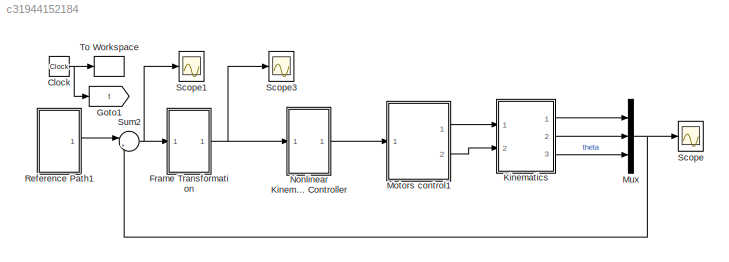
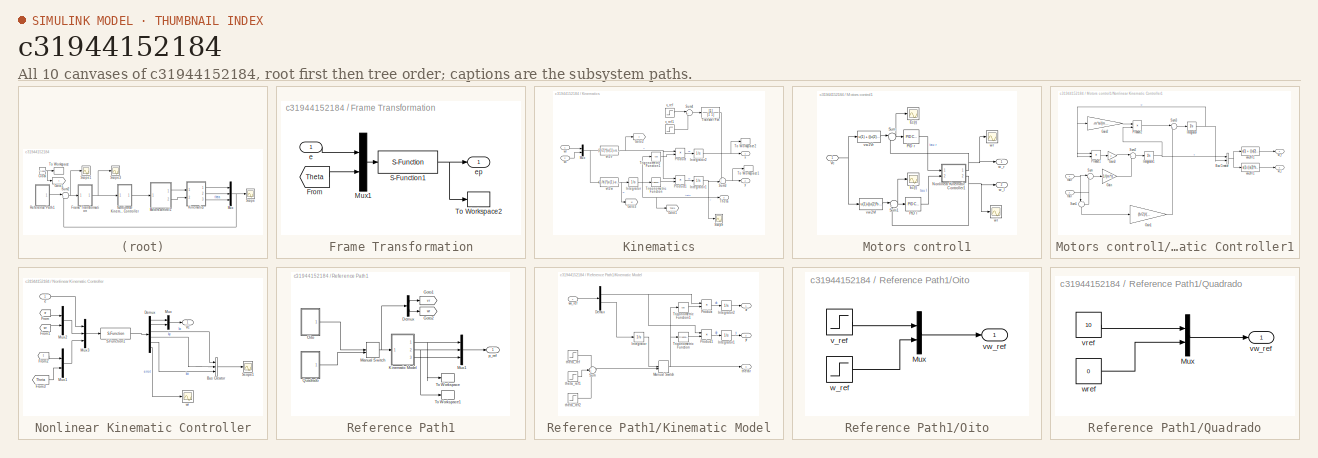
[diagram: thumbnail index - all 10 canvases of the model, root first then tree order]
MODEL slx_c31944152184
KIND model
BLOCK [Clock] Clock
  Decimation = 1
BLOCK [SubSystem] Frame Transformation
  Ports = [1, 1]
  RequestExecContextInheritance = off
BLOCK [From] Frame Transformation/From
  GotoTag = Theta
  TagVisibility = global
BLOCK [Mux] Frame Transformation/Mux1
  DisplayOption = bar
  Inputs = 2
  Ports = [2, 1]
BLOCK [S-Function] Frame Transformation/S-Function1
  EnableBusSupport = off
  FunctionName = sfunc_Ep
  Parameters = Ts
  Ports = [1, 1]
BLOCK [ToWorkspace] Frame Transformation/To Workspace2
  MaxDataPoints = inf
  Ports = [1]
  SampleTime = Ts
  VariableName = ep
BLOCK [Inport] Frame Transformation/e
  IconDisplay = Port number
BLOCK [Outport] Frame Transformation/ep
  IconDisplay = Port number
BLOCK [Goto] Goto1
  GotoTag = t
  TagVisibility = global
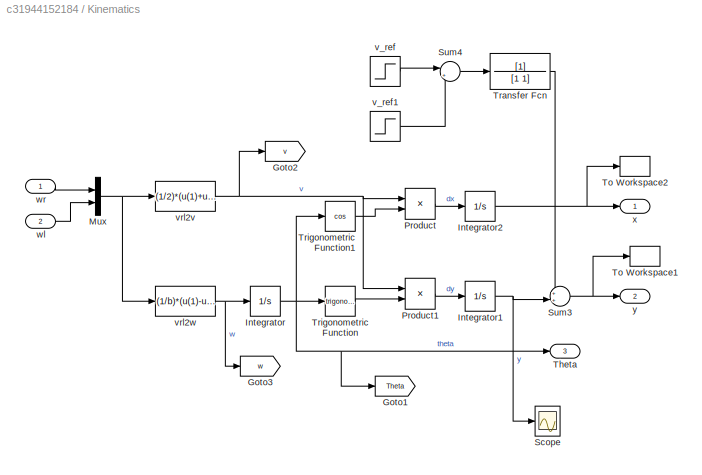
BLOCK [SubSystem] Kinematics
  Ports = [2, 3]
  RequestExecContextInheritance = off
BLOCK [Goto] Kinematics/Goto1
  GotoTag = Theta
  TagVisibility = global
BLOCK [Goto] Kinematics/Goto2
  GotoTag = v
  TagVisibility = global
BLOCK [Goto] Kinematics/Goto3
  GotoTag = w
  TagVisibility = global
BLOCK [Integrator] Kinematics/Integrator
  InitialCondition = thetao
  Ports = [1, 1]
BLOCK [Integrator] Kinematics/Integrator1
  InitialCondition = yo
  Ports = [1, 1]
BLOCK [Integrator] Kinematics/Integrator2
  InitialCondition = xo
  Ports = [1, 1]
BLOCK [Mux] Kinematics/Mux
  DisplayOption = bar
  Inputs = 2
  Ports = [2, 1]
BLOCK [Product] Kinematics/Product
  InputSameDT = off
  OutDataTypeStr = Inherit: Inherit via internal rule
  Ports = [2, 1]
  RndMeth = Floor
  SaturateOnIntegerOverflow = off
BLOCK [Product] Kinematics/Product1
  InputSameDT = off
  OutDataTypeStr = Inherit: Inherit via internal rule
  Ports = [2, 1]
  RndMeth = Floor
  SaturateOnIntegerOverflow = off
BLOCK [Scope] Kinematics/Scope
  DataFormat = StructureWithTime
  Floating = off
  LimitDataPoints = off
  NumInputPorts = 1
  Ports = [1]
  SampleTime = 0
  SaveName = ScopeData1
  ShowLegends = off
  TimeRange = 10
  ZoomMode = xonly
BLOCK [Sum] Kinematics/Sum3
  IconShape = round
  InputSameDT = off
  Inputs = ++|
  OutDataTypeStr = Inherit: Inherit via internal rule
  Ports = [2, 1]
  SaturateOnIntegerOverflow = off
BLOCK [Sum] Kinematics/Sum4
  IconShape = round
  InputSameDT = off
  Inputs = |+-
  OutDataTypeStr = Inherit: Inherit via internal rule
  Ports = [2, 1]
  SaturateOnIntegerOverflow = off
BLOCK [Outport] Kinematics/Theta
  IconDisplay = Port number
  Port = 3
BLOCK [ToWorkspace] Kinematics/To Workspace1
  MaxDataPoints = inf
  Ports = [1]
  SampleTime = Ts
  VariableName = y_real
BLOCK [ToWorkspace] Kinematics/To Workspace2
  MaxDataPoints = inf
  Ports = [1]
  SampleTime = Ts
  VariableName = x_real
BLOCK [TransferFcn] Kinematics/Transfer Fcn
  Denominator = [1 1]
BLOCK [Trigonometry] Kinematics/Trigonometric Function
  Ports = [1, 1]
BLOCK [Trigonometry] Kinematics/Trigonometric Function1
  Operator = cos
  Ports = [1, 1]
BLOCK [Step] Kinematics/v_ref
  After = -0.1
  SampleTime = 0
  Time = 25
BLOCK [Step] Kinematics/v_ref1
  After = -0.1
  SampleTime = 0
  Time = 26
BLOCK [Fcn] Kinematics/vrl2v
  Expr = (1/2)*(u(1)+u(2))
BLOCK [Fcn] Kinematics/vrl2w
  Expr = (1/b)*(u(1)-u(2))
BLOCK [Inport] Kinematics/wl
  IconDisplay = Port number
  Port = 2
BLOCK [Inport] Kinematics/wr
  IconDisplay = Port number
BLOCK [Outport] Kinematics/x
  IconDisplay = Port number
BLOCK [Outport] Kinematics/y
  IconDisplay = Port number
  Port = 2
BLOCK [SubSystem] Motors control1
  Ports = [1, 2]
  RequestExecContextInheritance = off
BLOCK [Scope] Motors control1/Ec(l)
  DataFormat = StructureWithTime
  Floating = off
  NumInputPorts = 1
  Ports = [1]
  SampleTime = 0
  SaveName = ScopeData7
  ShowLegends = off
  ZoomMode = xonly
BLOCK [Scope] Motors control1/Ec(r)
  DataFormat = StructureWithTime
  Floating = off
  NumInputPorts = 1
  Ports = [1]
  SampleTime = 0
  SaveName = ScopeData6
  ShowLegends = off
  ZoomMode = xonly
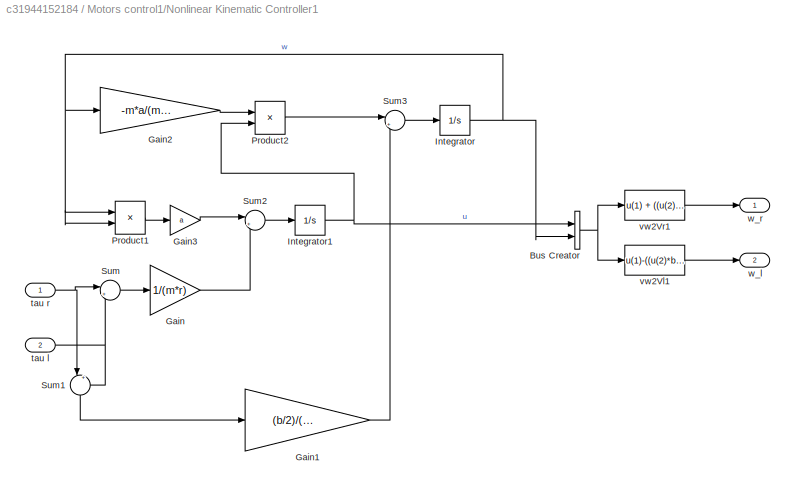
BLOCK [SubSystem] Motors control1/Nonlinear Kinematic Controller1
  Ports = [2, 2]
  RequestExecContextInheritance = off
BLOCK [BusCreator] Motors control1/Nonlinear Kinematic Controller1/Bus Creator
  DisplayOption = bar
  Inputs = 2
  Ports = [2, 1]
BLOCK [Gain] Motors control1/Nonlinear Kinematic Controller1/Gain
  Gain = 1/(m*r)
  OutDataTypeStr = Inherit: Inherit via internal rule
  ParamDataTypeStr = Inherit: Inherit via internal rule
  SaturateOnIntegerOverflow = off
BLOCK [Gain] Motors control1/Nonlinear Kinematic Controller1/Gain1
  Gain = (b/2)/(r*(m*a*a+Ic))
  OutDataTypeStr = Inherit: Inherit via internal rule
  ParamDataTypeStr = Inherit: Inherit via internal rule
  SaturateOnIntegerOverflow = off
BLOCK [Gain] Motors control1/Nonlinear Kinematic Controller1/Gain2
  Gain = -m*a/(m*a*a+Ic)
  OutDataTypeStr = Inherit: Inherit via internal rule
  ParamDataTypeStr = Inherit: Inherit via internal rule
  SaturateOnIntegerOverflow = off
BLOCK [Gain] Motors control1/Nonlinear Kinematic Controller1/Gain3
  Gain = a
  OutDataTypeStr = Inherit: Inherit via internal rule
  ParamDataTypeStr = Inherit: Inherit via internal rule
  SaturateOnIntegerOverflow = off
BLOCK [Integrator] Motors control1/Nonlinear Kinematic Controller1/Integrator
  Ports = [1, 1]
BLOCK [Integrator] Motors control1/Nonlinear Kinematic Controller1/Integrator1
  Ports = [1, 1]
BLOCK [Product] Motors control1/Nonlinear Kinematic Controller1/Product1
  InputSameDT = off
  OutDataTypeStr = Inherit: Inherit via internal rule
  Ports = [2, 1]
  RndMeth = Floor
  SaturateOnIntegerOverflow = off
BLOCK [Product] Motors control1/Nonlinear Kinematic Controller1/Product2
  InputSameDT = off
  OutDataTypeStr = Inherit: Inherit via internal rule
  Ports = [2, 1]
  RndMeth = Floor
  SaturateOnIntegerOverflow = off
BLOCK [Sum] Motors control1/Nonlinear Kinematic Controller1/Sum
  IconShape = round
  InputSameDT = off
  Inputs = |++
  OutDataTypeStr = Inherit: Inherit via internal rule
  Ports = [2, 1]
  SaturateOnIntegerOverflow = off
BLOCK [Sum] Motors control1/Nonlinear Kinematic Controller1/Sum1
  IconShape = round
  InputSameDT = off
  Inputs = |+-
  OutDataTypeStr = Inherit: Inherit via internal rule
  Ports = [2, 1]
  SaturateOnIntegerOverflow = off
BLOCK [Sum] Motors control1/Nonlinear Kinematic Controller1/Sum2
  IconShape = round
  InputSameDT = off
  Inputs = |++
  OutDataTypeStr = Inherit: Inherit via internal rule
  Ports = [2, 1]
  SaturateOnIntegerOverflow = off
BLOCK [Sum] Motors control1/Nonlinear Kinematic Controller1/Sum3
  IconShape = round
  InputSameDT = off
  Inputs = |++
  OutDataTypeStr = Inherit: Inherit via internal rule
  Ports = [2, 1]
  SaturateOnIntegerOverflow = off
BLOCK [Inport] Motors control1/Nonlinear Kinematic Controller1/tau l
  IconDisplay = Port number
  Port = 2
BLOCK [Inport] Motors control1/Nonlinear Kinematic Controller1/tau r
  IconDisplay = Port number
BLOCK [Fcn] Motors control1/Nonlinear Kinematic Controller1/vw2Vl1
  Expr = u(1)-((u(2)*b)/2)
BLOCK [Fcn] Motors control1/Nonlinear Kinematic Controller1/vw2Vr1
  Expr = u(1) + ((u(2)*b)/2)
BLOCK [Outport] Motors control1/Nonlinear Kinematic Controller1/w_l
  IconDisplay = Port number
  Port = 2
BLOCK [Outport] Motors control1/Nonlinear Kinematic Controller1/w_r
  IconDisplay = Port number
BLOCK [Reference] Motors control1/PID l  REF=simulink/Continuous/PID Controller
  AntiWindupMode = none
  Controller = PID
  D = Kd
  DOutDataTypeStr = Inherit: Inherit via internal rule
  DOutMax = []
  DOutMin = []
  DParamDataTypeStr = Inherit: Inherit via internal rule
  DParamMax = []
  DParamMin = []
  ExternalReset = none
  FilterContinuousStateAttributes = ''
  FilterMethod = Forward Euler
  FilterOutDataTypeStr = Inherit: Inherit via internal rule
  FilterOutMax = []
  FilterOutMin = []
  FilterRTWStateStorageClass = Auto
  FilterStateMustResolveToSignalObject = off
  Form = Parallel
  I = Ki
  IOutDataTypeStr = Inherit: Inherit via internal rule
  IOutMax = []
  IOutMin = []
  IParamDataTypeStr = Inherit: Inherit via internal rule
  IParamMax = []
  IParamMin = []
  IgnoreLimit = off
  InitialConditionForFilter = 0
  InitialConditionForIntegrator = 0
  InitialConditionSource = internal
  IntegratorContinuousStateAttributes = ''
  IntegratorMethod = Forward Euler
  IntegratorOutDataTypeStr = Inherit: Inherit via internal rule
  IntegratorOutMax = []
  IntegratorOutMin = []
  IntegratorRTWStateStorageClass = Auto
  IntegratorStateMustResolveToSignalObject = off
  Kb = 1
  KbOutDataTypeStr = Inherit: Inherit via internal rule
  KbOutMax = []
  KbOutMin = []
  KbParamDataTypeStr = Inherit: Inherit via internal rule
  KbParamMax = []
  KbParamMin = []
  Kt = 1
  KtOutDataTypeStr = Inherit: Inherit via internal rule
  KtOutMax = []
  KtOutMin = []
  KtParamDataTypeStr = Inherit: Inherit via internal rule
  KtParamMax = []
  KtParamMin = []
  LimitOutput = off
  LinearizeAsGain = on
  LockScale = off
  LowerSaturationLimit = -inf
  N = 100
  NOutDataTypeStr = Inherit: Inherit via internal rule
  NOutMax = []
  NOutMin = []
  NParamDataTypeStr = Inherit: Inherit via internal rule
  NParamMax = []
  NParamMin = []
  P = Kp
  POutDataTypeStr = Inherit: Inherit via internal rule
  POutMax = []
  POutMin = []
  PParamDataTypeStr = Inherit: Inherit via internal rule
  PParamMax = []
  PParamMin = []
  Ports = [1, 1]
  RndMeth = Floor
  SampleTime = 1
  SaturateOnIntegerOverflow = off
  SaturationOutDataTypeStr = Inherit: Same as input
  SaturationOutMax = []
  SaturationOutMin = []
  SourceBlock = simulink/Continuous/PID Controller
  SourceType = PID 1dof
  SumAccumDataTypeStr = Inherit: Inherit via internal rule
  SumDAccumDataTypeStr = Inherit: Inherit via internal rule
  SumDOutDataTypeStr = Inherit: Inherit via internal rule
  SumDOutMax = []
  SumDOutMin = []
  SumI1AccumDataTypeStr = Inherit: Inherit via internal rule
  SumI1OutDataTypeStr = Inherit: Inherit via internal rule
  SumI1OutMax = []
  SumI1OutMin = []
  SumI2AccumDataTypeStr = Inherit: Inherit via internal rule
  SumI2OutDataTypeStr = Inherit: Inherit via internal rule
  SumI2OutMax = []
  SumI2OutMin = []
  SumI3AccumDataTypeStr = Inherit: Inherit via internal rule
  SumI3OutDataTypeStr = Inherit: Inherit via internal rule
  SumI3OutMax = []
  SumI3OutMin = []
  SumOutDataTypeStr = Inherit: Inherit via internal rule
  SumOutMax = []
  SumOutMin = []
  TimeDomain = Continuous-time
  TrackingMode = off
  UpperSaturationLimit = inf
  ZeroCross = on
BLOCK [Reference] Motors control1/PID r  REF=simulink/Continuous/PID Controller
  AntiWindupMode = none
  Controller = PID
  D = Kd
  DOutDataTypeStr = Inherit: Inherit via internal rule
  DOutMax = []
  DOutMin = []
  DParamDataTypeStr = Inherit: Inherit via internal rule
  DParamMax = []
  DParamMin = []
  ExternalReset = none
  FilterContinuousStateAttributes = ''
  FilterMethod = Forward Euler
  FilterOutDataTypeStr = Inherit: Inherit via internal rule
  FilterOutMax = []
  FilterOutMin = []
  FilterRTWStateStorageClass = Auto
  FilterStateMustResolveToSignalObject = off
  Form = Parallel
  I = Ki
  IOutDataTypeStr = Inherit: Inherit via internal rule
  IOutMax = []
  IOutMin = []
  IParamDataTypeStr = Inherit: Inherit via internal rule
  IParamMax = []
  IParamMin = []
  IgnoreLimit = off
  InitialConditionForFilter = 0
  InitialConditionForIntegrator = 0
  InitialConditionSource = internal
  IntegratorContinuousStateAttributes = ''
  IntegratorMethod = Forward Euler
  IntegratorOutDataTypeStr = Inherit: Inherit via internal rule
  IntegratorOutMax = []
  IntegratorOutMin = []
  IntegratorRTWStateStorageClass = Auto
  IntegratorStateMustResolveToSignalObject = off
  Kb = 1
  KbOutDataTypeStr = Inherit: Inherit via internal rule
  KbOutMax = []
  KbOutMin = []
  KbParamDataTypeStr = Inherit: Inherit via internal rule
  KbParamMax = []
  KbParamMin = []
  Kt = 1
  KtOutDataTypeStr = Inherit: Inherit via internal rule
  KtOutMax = []
  KtOutMin = []
  KtParamDataTypeStr = Inherit: Inherit via internal rule
  KtParamMax = []
  KtParamMin = []
  LimitOutput = off
  LinearizeAsGain = on
  LockScale = off
  LowerSaturationLimit = -inf
  N = 100
  NOutDataTypeStr = Inherit: Inherit via internal rule
  NOutMax = []
  NOutMin = []
  NParamDataTypeStr = Inherit: Inherit via internal rule
  NParamMax = []
  NParamMin = []
  P = Kp
  POutDataTypeStr = Inherit: Inherit via internal rule
  POutMax = []
  POutMin = []
  PParamDataTypeStr = Inherit: Inherit via internal rule
  PParamMax = []
  PParamMin = []
  Ports = [1, 1]
  RndMeth = Floor
  SampleTime = 1
  SaturateOnIntegerOverflow = off
  SaturationOutDataTypeStr = Inherit: Same as input
  SaturationOutMax = []
  SaturationOutMin = []
  SourceBlock = simulink/Continuous/PID Controller
  SourceType = PID 1dof
  SumAccumDataTypeStr = Inherit: Inherit via internal rule
  SumDAccumDataTypeStr = Inherit: Inherit via internal rule
  SumDOutDataTypeStr = Inherit: Inherit via internal rule
  SumDOutMax = []
  SumDOutMin = []
  SumI1AccumDataTypeStr = Inherit: Inherit via internal rule
  SumI1OutDataTypeStr = Inherit: Inherit via internal rule
  SumI1OutMax = []
  SumI1OutMin = []
  SumI2AccumDataTypeStr = Inherit: Inherit via internal rule
  SumI2OutDataTypeStr = Inherit: Inherit via internal rule
  SumI2OutMax = []
  SumI2OutMin = []
  SumI3AccumDataTypeStr = Inherit: Inherit via internal rule
  SumI3OutDataTypeStr = Inherit: Inherit via internal rule
  SumI3OutMax = []
  SumI3OutMin = []
  SumOutDataTypeStr = Inherit: Inherit via internal rule
  SumOutMax = []
  SumOutMin = []
  TimeDomain = Continuous-time
  TrackingMode = off
  UpperSaturationLimit = inf
  ZeroCross = on
BLOCK [Sum] Motors control1/Sum
  IconShape = round
  InputSameDT = off
  Inputs = |+-
  OutDataTypeStr = Inherit: Inherit via internal rule
  Ports = [2, 1]
  SaturateOnIntegerOverflow = off
BLOCK [Sum] Motors control1/Sum1
  IconShape = round
  InputSameDT = off
  Inputs = |+-
  OutDataTypeStr = Inherit: Inherit via internal rule
  Ports = [2, 1]
  SaturateOnIntegerOverflow = off
BLOCK [Inport] Motors control1/Vc
  IconDisplay = Port number
BLOCK [Fcn] Motors control1/vw2Vl
  Expr = u(1)-((u(2)*b)/2)
BLOCK [Fcn] Motors control1/vw2Vr
  Expr = u(1) + ((u(2)*b)/2)
BLOCK [Outport] Motors control1/w_l
  IconDisplay = Port number
  Port = 2
BLOCK [Outport] Motors control1/w_r
  IconDisplay = Port number
BLOCK [Scope] Motors control1/wl
  DataFormat = StructureWithTime
  Floating = off
  NumInputPorts = 1
  Ports = [1]
  SampleTime = 0
  SaveName = ScopeData5
  ShowLegends = off
  ZoomMode = xonly
BLOCK [Scope] Motors control1/wr
  DataFormat = StructureWithTime
  Floating = off
  NumInputPorts = 1
  Ports = [1]
  SampleTime = 0
  SaveName = ScopeData3
  ShowLegends = off
  ZoomMode = xonly
BLOCK [Mux] Mux
  DisplayOption = bar
  Inputs = 3
  Ports = [3, 1]
BLOCK [SubSystem] Nonlinear Kinematic Controller
  Ports = [1, 1]
  RequestExecContextInheritance = off
BLOCK [BusCreator] Nonlinear Kinematic Controller/Bus Creator
  DisplayOption = bar
  Inputs = 3
  Ports = [3, 1]
BLOCK [Demux] Nonlinear Kinematic Controller/Demux
  DisplayOption = bar
  Outputs = 6
  Ports = [1, 6]
BLOCK [From] Nonlinear Kinematic Controller/From
  GotoTag = vr
  TagVisibility = global
BLOCK [From] Nonlinear Kinematic Controller/From1
  GotoTag = wr
  TagVisibility = global
BLOCK [From] Nonlinear Kinematic Controller/From2
  GotoTag = t
  TagVisibility = global
BLOCK [From] Nonlinear Kinematic Controller/From3
  GotoTag = Theta
  TagVisibility = global
BLOCK [Mux] Nonlinear Kinematic Controller/Mux
  DisplayOption = bar
  Inputs = 2
  Ports = [2, 1]
BLOCK [Mux] Nonlinear Kinematic Controller/Mux1
  DisplayOption = bar
  Inputs = 2
  Ports = [2, 1]
BLOCK [Mux] Nonlinear Kinematic Controller/Mux2
  DisplayOption = bar
  Inputs = 2
  Ports = [2, 1]
BLOCK [Mux] Nonlinear Kinematic Controller/Mux3
  DisplayOption = bar
  Inputs = 3
  Ports = [3, 1]
BLOCK [S-Function] Nonlinear Kinematic Controller/S-Function1
  EnableBusSupport = off
  FunctionName = sfunc_K_thiago
  Parameters = Ts
  Ports = [1, 1]
BLOCK [Scope] Nonlinear Kinematic Controller/Scope1
  DataFormat = StructureWithTime
  Floating = off
  LegendLocations = 0.49872     0.73527      0.1354     0.12016
  LimitDataPoints = off
  NumInputPorts = 1
  Ports = [1]
  SampleTime = 0
  SaveName = ScopeData8
  ShowLegends = on
  TimeRange = 10
  ZoomMode = xonly
BLOCK [Outport] Nonlinear Kinematic Controller/Vc
  IconDisplay = Port number
BLOCK [Inport] Nonlinear Kinematic Controller/e
  IconDisplay = Port number
BLOCK [Scope] Nonlinear Kinematic Controller/wr
  DataFormat = StructureWithTime
  Floating = off
  NumInputPorts = 1
  Ports = [1]
  SampleTime = 0
  SaveName = ScopeData9
  ShowLegends = off
  ZoomMode = xonly
BLOCK [SubSystem] Reference Path1
  Ports = [0, 1]
  RequestExecContextInheritance = off
BLOCK [Demux] Reference Path1/Demux
  DisplayOption = bar
  Outputs = 2
  Ports = [1, 2]
BLOCK [Goto] Reference Path1/Goto1
  GotoTag = vr
  TagVisibility = global
BLOCK [Goto] Reference Path1/Goto2
  GotoTag = wr
  TagVisibility = global
BLOCK [SubSystem] Reference Path1/Kinematic Model
  Ports = [1, 3]
  RequestExecContextInheritance = off
BLOCK [Demux] Reference Path1/Kinematic Model/Demux
  DisplayOption = bar
  Outputs = 2
  Ports = [1, 2]
BLOCK [Integrator] Reference Path1/Kinematic Model/Integrator
  Ports = [1, 1]
BLOCK [Integrator] Reference Path1/Kinematic Model/Integrator1
  Ports = [1, 1]
BLOCK [Integrator] Reference Path1/Kinematic Model/Integrator2
  Ports = [1, 1]
BLOCK [ManualSwitch] Reference Path1/Kinematic Model/Manual Switch
BLOCK [Product] Reference Path1/Kinematic Model/Product
  InputSameDT = off
  OutDataTypeStr = Inherit: Inherit via internal rule
  Ports = [2, 1]
  RndMeth = Floor
  SaturateOnIntegerOverflow = off
BLOCK [Product] Reference Path1/Kinematic Model/Product1
  InputSameDT = off
  OutDataTypeStr = Inherit: Inherit via internal rule
  Ports = [2, 1]
  RndMeth = Floor
  SaturateOnIntegerOverflow = off
BLOCK [Sum] Reference Path1/Kinematic Model/Sum
  IconShape = round
  InputSameDT = off
  Inputs = +++
  OutDataTypeStr = Inherit: Inherit via internal rule
  Ports = [3, 1]
  SaturateOnIntegerOverflow = off
BLOCK [Trigonometry] Reference Path1/Kinematic Model/Trigonometric Function
  Ports = [1, 1]
BLOCK [Trigonometry] Reference Path1/Kinematic Model/Trigonometric Function1
  Operator = cos
  Ports = [1, 1]
BLOCK [Step] Reference Path1/Kinematic Model/theta_ref
  After = pi/2
  SampleTime = 0
  Time = 20
BLOCK [Step] Reference Path1/Kinematic Model/theta_ref1
  After = pi/2
  SampleTime = 0
  Time = 40
BLOCK [Step] Reference Path1/Kinematic Model/theta_ref2
  After = pi/2
  SampleTime = 0
  Time = 60
BLOCK [Outport] Reference Path1/Kinematic Model/thetar
  IconDisplay = Port number
  Port = 3
BLOCK [Inport] Reference Path1/Kinematic Model/vw_ref
  IconDisplay = Port number
BLOCK [Outport] Reference Path1/Kinematic Model/xr
  IconDisplay = Port number
BLOCK [Outport] Reference Path1/Kinematic Model/yr
  IconDisplay = Port number
  Port = 2
BLOCK [ManualSwitch] Reference Path1/Manual Switch
BLOCK [Mux] Reference Path1/Mux1
  DisplayOption = bar
  Inputs = 3
  Ports = [3, 1]
BLOCK [SubSystem] Reference Path1/Oito
  Ports = [0, 1]
  RequestExecContextInheritance = off
BLOCK [Mux] Reference Path1/Oito/Mux
  DisplayOption = bar
  Inputs = 2
  Ports = [2, 1]
BLOCK [Step] Reference Path1/Oito/v_ref
  After = 10
  Before = 10
  SampleTime = 0
BLOCK [Outport] Reference Path1/Oito/vw_ref
  IconDisplay = Port number
BLOCK [Step] Reference Path1/Oito/w_ref
  After = -0.35
  Before = 0.35
  SampleTime = 0
  Time = 18
BLOCK [SubSystem] Reference Path1/Quadrado
  Ports = [0, 1]
  RequestExecContextInheritance = off
BLOCK [Mux] Reference Path1/Quadrado/Mux
  DisplayOption = bar
  Inputs = 2
  Ports = [2, 1]
BLOCK [Constant] Reference Path1/Quadrado/vref
  Value = 10
BLOCK [Outport] Reference Path1/Quadrado/vw_ref
  IconDisplay = Port number
BLOCK [Constant] Reference Path1/Quadrado/wref
  Value = 0
BLOCK [ToWorkspace] Reference Path1/To Workspace
  MaxDataPoints = inf
  Ports = [1]
  SampleTime = Ts
  VariableName = xref
BLOCK [ToWorkspace] Reference Path1/To Workspace1
  MaxDataPoints = inf
  Ports = [1]
  SampleTime = Ts
  VariableName = yref
BLOCK [Outport] Reference Path1/p_ref
  IconDisplay = Port number
BLOCK [Scope] Scope
  DataFormat = StructureWithTime
  Floating = off
  LimitDataPoints = off
  NumInputPorts = 1
  Ports = [1]
  SampleTime = 0
  ShowLegends = off
  TimeRange = 10
  ZoomMode = yonly
BLOCK [Scope] Scope1
  DataFormat = StructureWithTime
  Floating = off
  LimitDataPoints = off
  NumInputPorts = 1
  Ports = [1]
  SampleTime = 0
  SaveName = ScopeData2
  ShowLegends = off
  TimeRange = 10
  ZoomMode = yonly
BLOCK [Scope] Scope3
  DataFormat = StructureWithTime
  Floating = off
  LimitDataPoints = off
  NumInputPorts = 1
  Ports = [1]
  SampleTime = 0
  SaveName = ScopeData4
  ShowLegends = on
  TimeRange = 10
BLOCK [Sum] Sum2
  IconShape = round
  InputSameDT = off
  Inputs = |+-
  OutDataTypeStr = Inherit: Inherit via internal rule
  Ports = [2, 1]
  SaturateOnIntegerOverflow = off
BLOCK [ToWorkspace] To Workspace
  MaxDataPoints = inf
  Ports = [1]
  SampleTime = Ts
  VariableName = t
NET Clock:1 -> Goto1:1, To Workspace:1
LINE Frame Transformation/From:1 -> Frame Transformation/Mux1:2
LINE Frame Transformation/Mux1:1 -> Frame Transformation/S-Function1:1
NET Frame Transformation/S-Function1:1 -> Frame Transformation/To Workspace2:1, Frame Transformation/ep:1
LINE Frame Transformation/e:1 -> Frame Transformation/Mux1:1
NET Frame Transformation:1 -> Nonlinear Kinematic Controller:1, Scope3:1
NET Kinematics/Integrator1:1 -> Kinematics/Scope:1, Kinematics/Sum3:2
NET Kinematics/Integrator2:1 -> Kinematics/To Workspace2:1, Kinematics/x:1
NET Kinematics/Integrator:1 -> Kinematics/Goto1:1, Kinematics/Theta:1, Kinematics/Trigonometric Function1:1, Kinematics/Trigonometric Function:1
NET Kinematics/Mux:1 -> Kinematics/vrl2v:1, Kinematics/vrl2w:1
LINE Kinematics/Product1:1 -> Kinematics/Integrator1:1
LINE Kinematics/Product:1 -> Kinematics/Integrator2:1
NET Kinematics/Sum3:1 -> Kinematics/To Workspace1:1, Kinematics/y:1
LINE Kinematics/Sum4:1 -> Kinematics/Transfer Fcn:1
LINE Kinematics/Transfer Fcn:1 -> Kinematics/Sum3:1
LINE Kinematics/Trigonometric Function1:1 -> Kinematics/Product:2
LINE Kinematics/Trigonometric Function:1 -> Kinematics/Product1:2
LINE Kinematics/v_ref1:1 -> Kinematics/Sum4:2
LINE Kinematics/v_ref:1 -> Kinematics/Sum4:1
NET Kinematics/vrl2v:1 -> Kinematics/Goto2:1, Kinematics/Product1:1, Kinematics/Product:1
NET Kinematics/vrl2w:1 -> Kinematics/Goto3:1, Kinematics/Integrator:1
LINE Kinematics/wl:1 -> Kinematics/Mux:2
LINE Kinematics/wr:1 -> Kinematics/Mux:1
LINE Kinematics:1 -> Mux:1
LINE Kinematics:2 -> Mux:2
LINE Kinematics:3 -> Mux:3
NET Motors control1/Nonlinear Kinematic Controller1/Bus Creator:1 -> Motors control1/Nonlinear Kinematic Controller1/vw2Vl1:1, Motors control1/Nonlinear Kinematic Controller1/vw2Vr1:1
LINE Motors control1/Nonlinear Kinematic Controller1/Gain1:1 -> Motors control1/Nonlinear Kinematic Controller1/Sum3:2
LINE Motors control1/Nonlinear Kinematic Controller1/Gain2:1 -> Motors control1/Nonlinear Kinematic Controller1/Product2:1
LINE Motors control1/Nonlinear Kinematic Controller1/Gain3:1 -> Motors control1/Nonlinear Kinematic Controller1/Sum2:1
LINE Motors control1/Nonlinear Kinematic Controller1/Gain:1 -> Motors control1/Nonlinear Kinematic Controller1/Sum2:2
NET Motors control1/Nonlinear Kinematic Controller1/Integrator1:1 -> Motors control1/Nonlinear Kinematic Controller1/Bus Creator:1, Motors control1/Nonlinear Kinematic Controller1/Product2:2
NET Motors control1/Nonlinear Kinematic Controller1/Integrator:1 -> Motors control1/Nonlinear Kinematic Controller1/Bus Creator:2, Motors control1/Nonlinear Kinematic Controller1/Gain2:1, Motors control1/Nonlinear Kinematic Controller1/Product1:1, Motors control1/Nonlinear Kinematic Controller1/Product1:2
LINE Motors control1/Nonlinear Kinematic Controller1/Product1:1 -> Motors control1/Nonlinear Kinematic Controller1/Gain3:1
LINE Motors control1/Nonlinear Kinematic Controller1/Product2:1 -> Motors control1/Nonlinear Kinematic Controller1/Sum3:1
LINE Motors control1/Nonlinear Kinematic Controller1/Sum1:1 -> Motors control1/Nonlinear Kinematic Controller1/Gain1:1
LINE Motors control1/Nonlinear Kinematic Controller1/Sum2:1 -> Motors control1/Nonlinear Kinematic Controller1/Integrator1:1
LINE Motors control1/Nonlinear Kinematic Controller1/Sum3:1 -> Motors control1/Nonlinear Kinematic Controller1/Integrator:1
LINE Motors control1/Nonlinear Kinematic Controller1/Sum:1 -> Motors control1/Nonlinear Kinematic Controller1/Gain:1
NET Motors control1/Nonlinear Kinematic Controller1/tau l:1 -> Motors control1/Nonlinear Kinematic Controller1/Sum1:2, Motors control1/Nonlinear Kinematic Controller1/Sum:2
NET Motors control1/Nonlinear Kinematic Controller1/tau r:1 -> Motors control1/Nonlinear Kinematic Controller1/Sum1:1, Motors control1/Nonlinear Kinematic Controller1/Sum:1
LINE Motors control1/Nonlinear Kinematic Controller1/vw2Vl1:1 -> Motors control1/Nonlinear Kinematic Controller1/w_l:1
LINE Motors control1/Nonlinear Kinematic Controller1/vw2Vr1:1 -> Motors control1/Nonlinear Kinematic Controller1/w_r:1
NET Motors control1/Nonlinear Kinematic Controller1:1 -> Motors control1/Sum:2, Motors control1/w_r:1, Motors control1/wr:1
NET Motors control1/Nonlinear Kinematic Controller1:2 -> Motors control1/Sum1:2, Motors control1/w_l:1, Motors control1/wl:1
LINE Motors control1/PID l:1 -> Motors control1/Nonlinear Kinematic Controller1:2
LINE Motors control1/PID r:1 -> Motors control1/Nonlinear Kinematic Controller1:1
NET Motors control1/Sum1:1 -> Motors control1/Ec(l):1, Motors control1/PID l:1
NET Motors control1/Sum:1 -> Motors control1/Ec(r):1, Motors control1/PID r:1
NET Motors control1/Vc:1 -> Motors control1/vw2Vl:1, Motors control1/vw2Vr:1
LINE Motors control1/vw2Vl:1 -> Motors control1/Sum1:1
LINE Motors control1/vw2Vr:1 -> Motors control1/Sum:1
LINE Motors control1:1 -> Kinematics:1
LINE Motors control1:2 -> Kinematics:2
NET Mux:1 -> Scope:1, Sum2:2
LINE Nonlinear Kinematic Controller/Bus Creator:1 -> Nonlinear Kinematic Controller/Scope1:1
LINE Nonlinear Kinematic Controller/Demux:1 -> Nonlinear Kinematic Controller/Mux:1
LINE Nonlinear Kinematic Controller/Demux:2 -> Nonlinear Kinematic Controller/Mux:2
LINE Nonlinear Kinematic Controller/Demux:3 -> Nonlinear Kinematic Controller/Bus Creator:1
LINE Nonlinear Kinematic Controller/Demux:4 -> Nonlinear Kinematic Controller/Bus Creator:2
LINE Nonlinear Kinematic Controller/Demux:5 -> Nonlinear Kinematic Controller/Bus Creator:3
LINE Nonlinear Kinematic Controller/Demux:6 -> Nonlinear Kinematic Controller/wr:1
LINE Nonlinear Kinematic Controller/From1:1 -> Nonlinear Kinematic Controller/Mux2:2
LINE Nonlinear Kinematic Controller/From2:1 -> Nonlinear Kinematic Controller/Mux1:1
LINE Nonlinear Kinematic Controller/From3:1 -> Nonlinear Kinematic Controller/Mux1:2
LINE Nonlinear Kinematic Controller/From:1 -> Nonlinear Kinematic Controller/Mux2:1
LINE Nonlinear Kinematic Controller/Mux1:1 -> Nonlinear Kinematic Controller/Mux3:3
LINE Nonlinear Kinematic Controller/Mux2:1 -> Nonlinear Kinematic Controller/Mux3:2
LINE Nonlinear Kinematic Controller/Mux3:1 -> Nonlinear Kinematic Controller/S-Function1:1
LINE Nonlinear Kinematic Controller/Mux:1 -> Nonlinear Kinematic Controller/Vc:1
LINE Nonlinear Kinematic Controller/S-Function1:1 -> Nonlinear Kinematic Controller/Demux:1
LINE Nonlinear Kinematic Controller/e:1 -> Nonlinear Kinematic Controller/Mux3:1
LINE Nonlinear Kinematic Controller:1 -> Motors control1:1
LINE Reference Path1/Demux:1 -> Reference Path1/Goto1:1
LINE Reference Path1/Demux:2 -> Reference Path1/Goto2:1
NET Reference Path1/Kinematic Model/Demux:1 -> Reference Path1/Kinematic Model/Product1:1, Reference Path1/Kinematic Model/Product:1
LINE Reference Path1/Kinematic Model/Demux:2 -> Reference Path1/Kinematic Model/Integrator:1
LINE Reference Path1/Kinematic Model/Integrator1:1 -> Reference Path1/Kinematic Model/yr:1
LINE Reference Path1/Kinematic Model/Integrator2:1 -> Reference Path1/Kinematic Model/xr:1
LINE Reference Path1/Kinematic Model/Integrator:1 -> Reference Path1/Kinematic Model/Manual Switch:1
NET Reference Path1/Kinematic Model/Manual Switch:1 -> Reference Path1/Kinematic Model/Trigonometric Function1:1, Reference Path1/Kinematic Model/Trigonometric Function:1, Reference Path1/Kinematic Model/thetar:1
LINE Reference Path1/Kinematic Model/Product1:1 -> Reference Path1/Kinematic Model/Integrator1:1
LINE Reference Path1/Kinematic Model/Product:1 -> Reference Path1/Kinematic Model/Integrator2:1
LINE Reference Path1/Kinematic Model/Sum:1 -> Reference Path1/Kinematic Model/Manual Switch:2
LINE Reference Path1/Kinematic Model/Trigonometric Function1:1 -> Reference Path1/Kinematic Model/Product:2
LINE Reference Path1/Kinematic Model/Trigonometric Function:1 -> Reference Path1/Kinematic Model/Product1:2
LINE Reference Path1/Kinematic Model/theta_ref1:1 -> Reference Path1/Kinematic Model/Sum:2
LINE Reference Path1/Kinematic Model/theta_ref2:1 -> Reference Path1/Kinematic Model/Sum:3
LINE Reference Path1/Kinematic Model/theta_ref:1 -> Reference Path1/Kinematic Model/Sum:1
LINE Reference Path1/Kinematic Model/vw_ref:1 -> Reference Path1/Kinematic Model/Demux:1
NET Reference Path1/Kinematic Model:1 -> Reference Path1/Mux1:1, Reference Path1/To Workspace:1
NET Reference Path1/Kinematic Model:2 -> Reference Path1/Mux1:2, Reference Path1/To Workspace1:1
LINE Reference Path1/Kinematic Model:3 -> Reference Path1/Mux1:3
NET Reference Path1/Manual Switch:1 -> Reference Path1/Demux:1, Reference Path1/Kinematic Model:1
LINE Reference Path1/Mux1:1 -> Reference Path1/p_ref:1
LINE Reference Path1/Oito/Mux:1 -> Reference Path1/Oito/vw_ref:1
LINE Reference Path1/Oito/v_ref:1 -> Reference Path1/Oito/Mux:1
LINE Reference Path1/Oito/w_ref:1 -> Reference Path1/Oito/Mux:2
LINE Reference Path1/Oito:1 -> Reference Path1/Manual Switch:1
LINE Reference Path1/Quadrado/Mux:1 -> Reference Path1/Quadrado/vw_ref:1
LINE Reference Path1/Quadrado/vref:1 -> Reference Path1/Quadrado/Mux:1
LINE Reference Path1/Quadrado/wref:1 -> Reference Path1/Quadrado/Mux:2
LINE Reference Path1/Quadrado:1 -> Reference Path1/Manual Switch:2
LINE Reference Path1:1 -> Sum2:1
NET Sum2:1 -> Frame Transformation:1, Scope1:1
note: NET lines group one-source signal fan-out (src -> all destinations, sorted); 1:1 wires keep LINE
